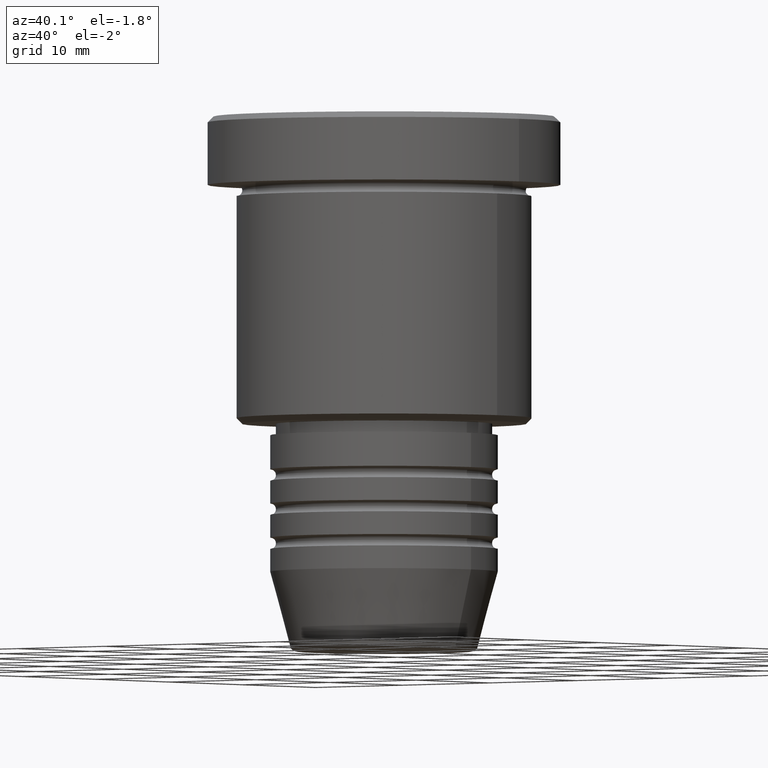
[diagram: clean part render]
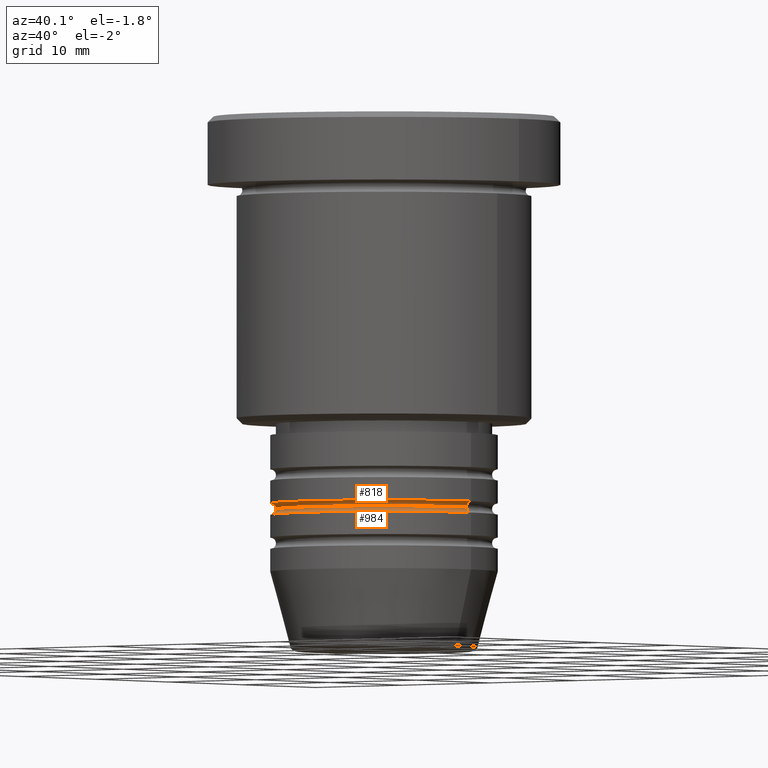
[diagram: same view with one multi-face feature highlighted, each face labeled with its STEP entity id]
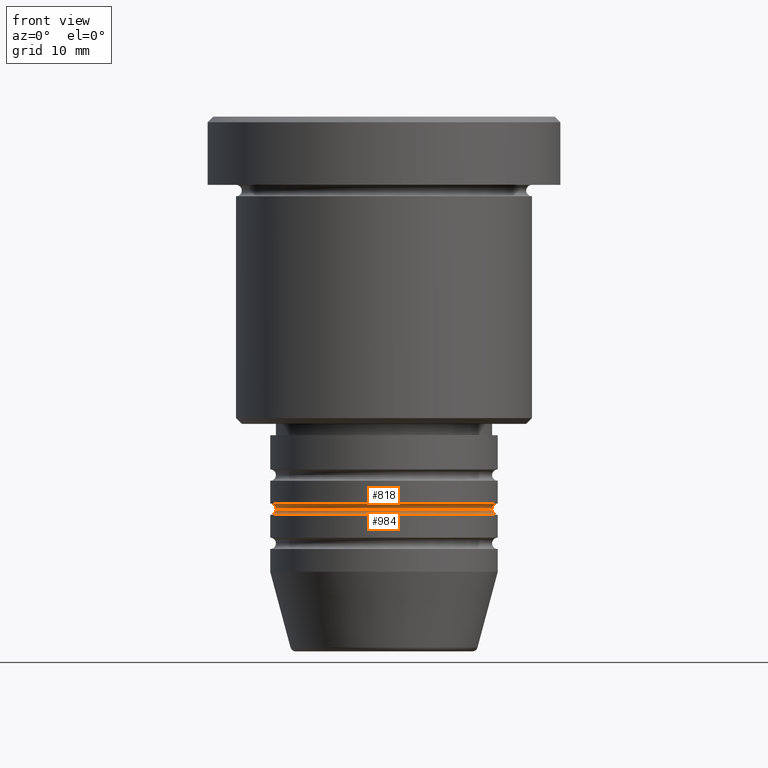
[diagram: same view with one multi-face feature highlighted, each face labeled with its STEP entity id]
A machine part, auxiliary view. The highlighted faces form ONE feature: a constant-radius fillet chain: 2 tangent blend faces with common blend radius 0.5 mm. The faces share edges in the B-rep.
A second angle (front view) of the same feature is appended — it is thin or edge-on in the first view.
Their STEP definitions:
[1] entity #984 (Torus):
#36 = CARTESIAN_POINT ( 'NONE',  ( 10.00000000000000000, 0.000000000000000000, -34.99999999999999289 ) ) ;
#79 = DIRECTION ( 'NONE',  ( 1.000000000000000000, 0.000000000000000000, 0.000000000000000000 ) ) ;
#120 = EDGE_LOOP ( 'NONE', ( #376, #736, #573, #936 ) ) ;
#194 = CARTESIAN_POINT ( 'NONE',  ( 0.000000000000000000, 0.000000000000000000, -34.49999999999998579 ) ) ;
#229 = EDGE_CURVE ( 'NONE', #849, #416, #1100, .T. ) ;
#243 = CARTESIAN_POINT ( 'NONE',  ( 9.500000000000001776, 0.000000000000000000, -34.49999999999998579 ) ) ;
#261 = TOROIDAL_SURFACE ( 'NONE', #408, 10.00000000000000178, 0.5000000000000000000 ) ;
#276 = AXIS2_PLACEMENT_3D ( 'NONE', #753, #566, #1121 ) ;
#320 = DIRECTION ( 'NONE',  ( 1.224646799147353207E-16, 1.000000000000000000, 0.000000000000000000 ) ) ;
#376 = ORIENTED_EDGE ( 'NONE', *, *, #394, .F. ) ;
#394 = EDGE_CURVE ( 'NONE', #849, #1089, #960, .T. ) ;
#408 = AXIS2_PLACEMENT_3D ( 'NONE', #732, #937, #460 ) ;
#416 = VERTEX_POINT ( 'NONE', #535 ) ;
#422 = AXIS2_PLACEMENT_3D ( 'NONE', #194, #889, #79 ) ;
#442 = CIRCLE ( 'NONE', #657, 0.5000000000000004441 ) ;
#458 = EDGE_CURVE ( 'NONE', #416, #1011, #1153, .T. ) ;
#460 = DIRECTION ( 'NONE',  ( 1.000000000000000000, 0.000000000000000000, 0.000000000000000000 ) ) ;
#535 = CARTESIAN_POINT ( 'NONE',  ( -10.00000000000000000, 1.224646799147353256E-15, -34.99999999999999289 ) ) ;
#566 = DIRECTION ( 'NONE',  ( -0.000000000000000000, -0.000000000000000000, 1.000000000000000000 ) ) ;
#573 = ORIENTED_EDGE ( 'NONE', *, *, #458, .T. ) ;
#590 = DIRECTION ( 'NONE',  ( 0.000000000000000000, -1.000000000000000000, 0.000000000000000000 ) ) ;
#595 = DIRECTION ( 'NONE',  ( 0.000000000000000000, 0.000000000000000000, -1.000000000000000000 ) ) ;
#621 = CARTESIAN_POINT ( 'NONE',  ( -9.500000000000001776, 1.194030629168669469E-15, -34.49999999999998579 ) ) ;
#657 = AXIS2_PLACEMENT_3D ( 'NONE', #949, #590, #595 ) ;
#732 = CARTESIAN_POINT ( 'NONE',  ( 0.000000000000000000, 0.000000000000000000, -34.49999999999998579 ) ) ;
#736 = ORIENTED_EDGE ( 'NONE', *, *, #229, .T. ) ;
#753 = CARTESIAN_POINT ( 'NONE',  ( 0.000000000000000000, 0.000000000000000000, -34.99999999999999289 ) ) ;
#841 = FACE_OUTER_BOUND ( 'NONE', #120, .T. ) ;
#849 = VERTEX_POINT ( 'NONE', #621 ) ;
#869 = DIRECTION ( 'NONE',  ( -1.000000000000000000, 1.224646799147353454E-16, 0.000000000000000000 ) ) ;
#889 = DIRECTION ( 'NONE',  ( -0.000000000000000000, -0.000000000000000000, 1.000000000000000000 ) ) ;
#936 = ORIENTED_EDGE ( 'NONE', *, *, #1097, .F. ) ;
#937 = DIRECTION ( 'NONE',  ( -0.000000000000000000, -0.000000000000000000, 1.000000000000000000 ) ) ;
#949 = CARTESIAN_POINT ( 'NONE',  ( 10.00000000000000178, 0.000000000000000000, -34.49999999999998579 ) ) ;
#960 = CIRCLE ( 'NONE', #422, 9.500000000000001776 ) ;
#984 = ADVANCED_FACE ( 'NONE', ( #841 ), #261, .F. ) ;
#1011 = VERTEX_POINT ( 'NONE', #36 ) ;
#1089 = VERTEX_POINT ( 'NONE', #243 ) ;
#1097 = EDGE_CURVE ( 'NONE', #1089, #1011, #442, .T. ) ;
#1100 = CIRCLE ( 'NONE', #1173, 0.5000000000000004441 ) ;
#1121 = DIRECTION ( 'NONE',  ( 1.000000000000000000, 0.000000000000000000, 0.000000000000000000 ) ) ;
#1140 = CARTESIAN_POINT ( 'NONE',  ( -10.00000000000000178, 1.224646799147353454E-15, -34.49999999999998579 ) ) ;
#1153 = CIRCLE ( 'NONE', #276, 10.00000000000000000 ) ;
#1173 = AXIS2_PLACEMENT_3D ( 'NONE', #1140, #320, #869 ) ;
[2] entity #818 (Torus):
#59 = CARTESIAN_POINT ( 'NONE',  ( 0.000000000000000000, 0.000000000000000000, -33.99999999999997868 ) ) ;
#79 = DIRECTION ( 'NONE',  ( 1.000000000000000000, 0.000000000000000000, 0.000000000000000000 ) ) ;
#106 = EDGE_CURVE ( 'NONE', #1089, #953, #386, .T. ) ;
#118 = CARTESIAN_POINT ( 'NONE',  ( 10.00000000000000000, 0.000000000000000000, -33.99999999999997868 ) ) ;
#187 = AXIS2_PLACEMENT_3D ( 'NONE', #1163, #1174, #895 ) ;
#194 = CARTESIAN_POINT ( 'NONE',  ( 0.000000000000000000, 0.000000000000000000, -34.49999999999998579 ) ) ;
#204 = AXIS2_PLACEMENT_3D ( 'NONE', #59, #313, #768 ) ;
#217 = VERTEX_POINT ( 'NONE', #1046 ) ;
#243 = CARTESIAN_POINT ( 'NONE',  ( 9.500000000000001776, 0.000000000000000000, -34.49999999999998579 ) ) ;
#264 = EDGE_CURVE ( 'NONE', #217, #953, #723, .T. ) ;
#313 = DIRECTION ( 'NONE',  ( -0.000000000000000000, -0.000000000000000000, 1.000000000000000000 ) ) ;
#366 = DIRECTION ( 'NONE',  ( -1.224646799147353207E-16, 1.000000000000000000, 0.000000000000000000 ) ) ;
#386 = CIRCLE ( 'NONE', #651, 0.5000000000000004441 ) ;
#394 = EDGE_CURVE ( 'NONE', #849, #1089, #960, .T. ) ;
#422 = AXIS2_PLACEMENT_3D ( 'NONE', #194, #889, #79 ) ;
#449 = ORIENTED_EDGE ( 'NONE', *, *, #264, .F. ) ;
#516 = ORIENTED_EDGE ( 'NONE', *, *, #695, .F. ) ;
#621 = CARTESIAN_POINT ( 'NONE',  ( -9.500000000000001776, 1.194030629168669469E-15, -34.49999999999998579 ) ) ;
#651 = AXIS2_PLACEMENT_3D ( 'NONE', #820, #366, #741 ) ;
#695 = EDGE_CURVE ( 'NONE', #849, #217, #1154, .T. ) ;
#723 = CIRCLE ( 'NONE', #204, 10.00000000000000000 ) ;
#738 = EDGE_LOOP ( 'NONE', ( #867, #1133, #449, #516 ) ) ;
#741 = DIRECTION ( 'NONE',  ( -1.000000000000000000, -1.224646799147353454E-16, 0.000000000000000000 ) ) ;
#763 = DIRECTION ( 'NONE',  ( 0.000000000000000000, 0.000000000000000000, -1.000000000000000000 ) ) ;
#768 = DIRECTION ( 'NONE',  ( 1.000000000000000000, 0.000000000000000000, 0.000000000000000000 ) ) ;
#789 = FACE_OUTER_BOUND ( 'NONE', #738, .T. ) ;
#818 = ADVANCED_FACE ( 'NONE', ( #789 ), #926, .F. ) ;
#820 = CARTESIAN_POINT ( 'NONE',  ( 10.00000000000000178, 1.224646799147353454E-15, -34.49999999999997868 ) ) ;
#849 = VERTEX_POINT ( 'NONE', #621 ) ;
#864 = DIRECTION ( 'NONE',  ( -0.000000000000000000, -1.000000000000000000, -0.000000000000000000 ) ) ;
#867 = ORIENTED_EDGE ( 'NONE', *, *, #394, .T. ) ;
#889 = DIRECTION ( 'NONE',  ( -0.000000000000000000, -0.000000000000000000, 1.000000000000000000 ) ) ;
#895 = DIRECTION ( 'NONE',  ( -1.000000000000000000, 0.000000000000000000, 0.000000000000000000 ) ) ;
#926 = TOROIDAL_SURFACE ( 'NONE', #187, 10.00000000000000178, 0.5000000000000000000 ) ;
#953 = VERTEX_POINT ( 'NONE', #118 ) ;
#960 = CIRCLE ( 'NONE', #422, 9.500000000000001776 ) ;
#1036 = AXIS2_PLACEMENT_3D ( 'NONE', #1156, #864, #763 ) ;
#1046 = CARTESIAN_POINT ( 'NONE',  ( -10.00000000000000000, 1.224646799147353256E-15, -33.99999999999997868 ) ) ;
#1089 = VERTEX_POINT ( 'NONE', #243 ) ;
#1133 = ORIENTED_EDGE ( 'NONE', *, *, #106, .T. ) ;
#1154 = CIRCLE ( 'NONE', #1036, 0.5000000000000004441 ) ;
#1156 = CARTESIAN_POINT ( 'NONE',  ( -10.00000000000000178, 0.000000000000000000, -34.49999999999997868 ) ) ;
#1163 = CARTESIAN_POINT ( 'NONE',  ( 0.000000000000000000, 0.000000000000000000, -34.49999999999997868 ) ) ;
#1174 = DIRECTION ( 'NONE',  ( 0.000000000000000000, 0.000000000000000000, -1.000000000000000000 ) ) ;